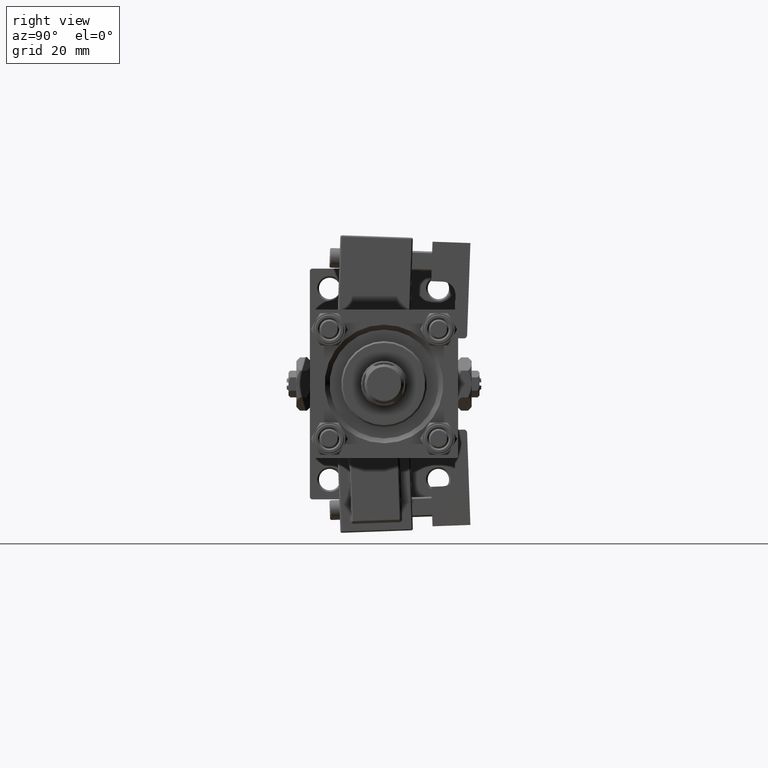
[diagram: clean part render]
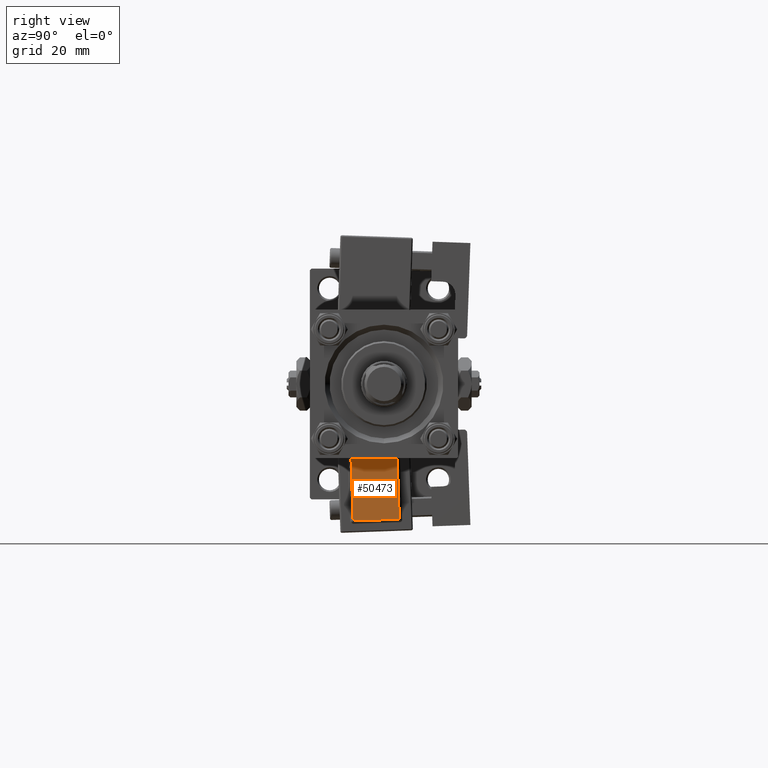
[diagram: same view with one face highlighted and labeled with its STEP entity id]
A machine part, right view. The second image highlights one B-rep face of the part: STEP entity #50473.
In plain terms, the highlighted planar face has unit normal (1, -0, 0).
Its self-contained STEP definition (entity closure, byte-faithful):
#1687 = EDGE_CURVE ( 'NONE', #43256, #39715, #14249, .T. ) ;
#1742 = DIRECTION ( 'NONE',  ( -5.473822126268816683E-48, 1.000000000000000000, 1.156482317317871725E-16 ) ) ;
#4728 = CARTESIAN_POINT ( 'NONE',  ( 33.75000000000000000, -1.755404897227950513E-31, 4.853889726050490295E-15 ) ) ;
#6270 = CARTESIAN_POINT ( 'NONE',  ( 33.74999999999999289, -15.75000000000000000, 22.00000000000000711 ) ) ;
#6470 = VERTEX_POINT ( 'NONE', #54108 ) ;
#6563 = DIRECTION ( 'NONE',  ( 2.006177025403372140E-32, -1.000000000000000000, -2.312964634635743450E-16 ) ) ;
#6879 = EDGE_CURVE ( 'NONE', #6470, #37267, #36419, .T. ) ;
#8293 = EDGE_LOOP ( 'NONE', ( #34393, #20117, #54008, #34949 ) ) ;
#9684 = VECTOR ( 'NONE', #6563, 1000.000000000000000 ) ;
#11897 = VECTOR ( 'NONE', #23047, 1000.000000000000000 ) ;
#12024 = CARTESIAN_POINT ( 'NONE',  ( 33.75000000000000000, -15.75000000000000000, 2.500000000000008438 ) ) ;
#14249 = LINE ( 'NONE', #6270, #11897 ) ;
#17691 = CARTESIAN_POINT ( 'NONE',  ( 33.75000000000000000, -15.25000000000000000, 2.500000000000008438 ) ) ;
#18206 = DIRECTION ( 'NONE',  ( 1.734723475976807341E-16, 0.000000000000000000, -1.000000000000000000 ) ) ;
#19626 = CARTESIAN_POINT ( 'NONE',  ( 33.75000000000000000, -29.75000000000000000, 2.000000000000006661 ) ) ;
#20117 = ORIENTED_EDGE ( 'NONE', *, *, #6879, .T. ) ;
#22059 = FACE_OUTER_BOUND ( 'NONE', #8293, .T. ) ;
#23047 = DIRECTION ( 'NONE',  ( -1.734723475976807341E-16, 0.000000000000000000, 1.000000000000000000 ) ) ;
#26234 = LINE ( 'NONE', #17691, #28034 ) ;
#28008 = LINE ( 'NONE', #44808, #9684 ) ;
#28034 = VECTOR ( 'NONE', #1742, 1000.000000000000000 ) ;
#30319 = PLANE ( 'NONE',  #40710 ) ;
#32973 = EDGE_CURVE ( 'NONE', #37267, #43256, #26234, .T. ) ;
#34393 = ORIENTED_EDGE ( 'NONE', *, *, #43912, .T. ) ;
#34949 = ORIENTED_EDGE ( 'NONE', *, *, #1687, .T. ) ;
#36419 = LINE ( 'NONE', #19626, #46493 ) ;
#37267 = VERTEX_POINT ( 'NONE', #40839 ) ;
#38485 = CARTESIAN_POINT ( 'NONE',  ( 33.74999999999999289, -15.75000000000000000, 21.50000000000000355 ) ) ;
#39715 = VERTEX_POINT ( 'NONE', #38485 ) ;
#40710 = AXIS2_PLACEMENT_3D ( 'NONE', #4728, #47121, #18206 ) ;
#40839 = CARTESIAN_POINT ( 'NONE',  ( 33.75000000000000000, -29.75000000000000000, 2.500000000000006661 ) ) ;
#43256 = VERTEX_POINT ( 'NONE', #12024 ) ;
#43912 = EDGE_CURVE ( 'NONE', #39715, #6470, #28008, .T. ) ;
#44808 = CARTESIAN_POINT ( 'NONE',  ( 33.74999999999999289, -30.25000000000000000, 21.50000000000000000 ) ) ;
#46493 = VECTOR ( 'NONE', #49897, 1000.000000000000000 ) ;
#47121 = DIRECTION ( 'NONE',  ( 1.000000000000000000, -2.006177025403371045E-32, 1.734723475976807341E-16 ) ) ;
#49897 = DIRECTION ( 'NONE',  ( 1.734723475976807341E-16, 0.000000000000000000, -1.000000000000000000 ) ) ;
#50473 = ADVANCED_FACE ( 'NONE', ( #22059 ), #30319, .T. ) ;
#54008 = ORIENTED_EDGE ( 'NONE', *, *, #32973, .T. ) ;
#54108 = CARTESIAN_POINT ( 'NONE',  ( 33.74999999999999289, -29.75000000000000000, 21.50000000000000000 ) ) ;